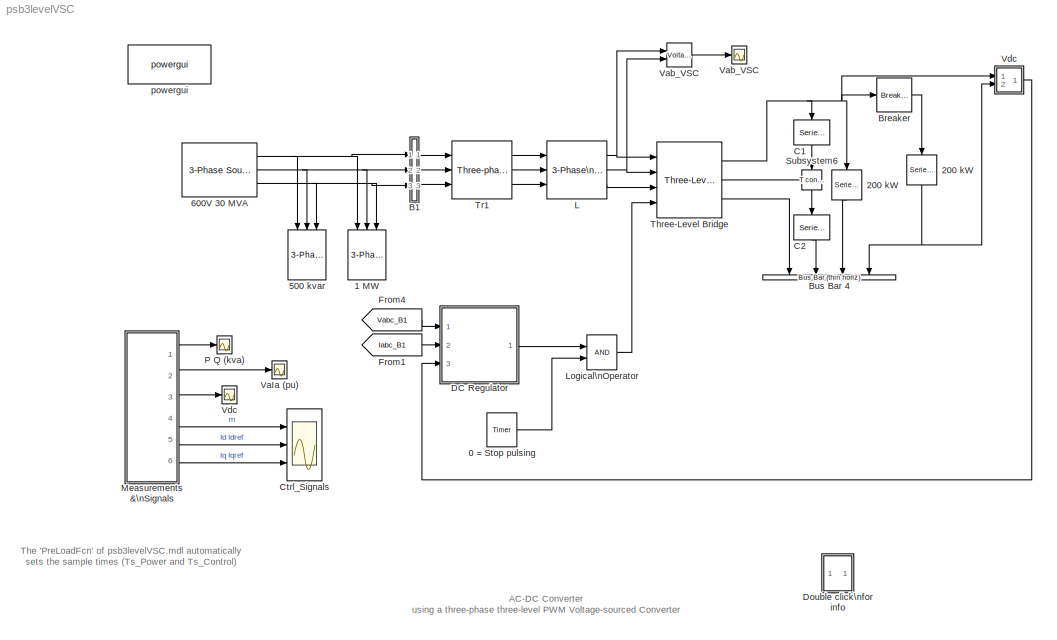
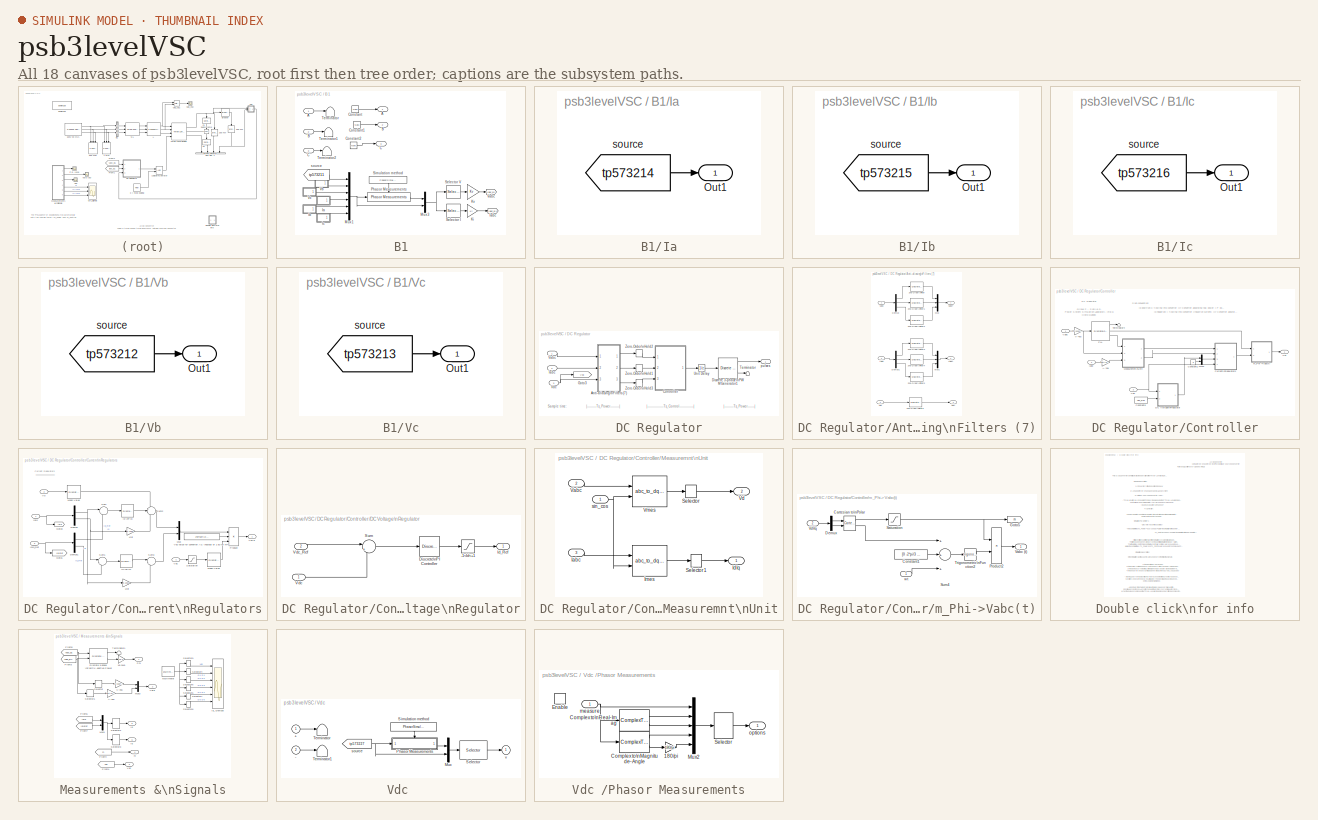
[diagram: thumbnail index - all 18 canvases of the model, root first then tree order]
MODEL psb3levelVSC
KIND model
CONFIG PreLoadFcn = assignin('base','Ts_Power',[5e-6]);assignin('base','Ts_Control',[100e-6])
BLOCK [Reference] 0 = Stop pulsing  REF=powerlib_extras/Control \nBlocks/Timer
  Ports = [0, 1]
  ShowPortLabels = on
  SourceBlock = powerlib_extras/Control \nBlocks/Timer
  SourceType = Timer
  e = [1 0]
  t = [0 0.2]
BLOCK [Reference] 1 MW  REF=powerlib2/Elements/3-Phase\nSeries RLC Load
  P3 = 1e6
  Ports = [3]
  QC3 = 0
  QL3 = 0
  ShowPortLabels = on
  SourceBlock = powerlib2/Elements/3-Phase\nSeries RLC Load
  SourceType = 3-phase series RLC load
  Vpp = 600
  fn = 60
BLOCK [Reference] 200 kW  REF=powerlib2/Elements/Series RLC Branch
  PSBOutputType = 1
  Ports = [1, 1]
  ShowPortLabels = on
  SourceBlock = powerlib2/Elements/Series RLC Branch
  SourceType = Series RLC Branch
  Tag = PoWeRsYsTeMbLoCk
  a = 500^2/200e3
  b = 0
  c = inf
  mesure = None
BLOCK [Reference] 200 kW   REF=powerlib2/Elements/Series RLC Branch
  PSBOutputType = 1
  Ports = [1, 1]
  ShowPortLabels = on
  SourceBlock = powerlib2/Elements/Series RLC Branch
  SourceType = Series RLC Branch
  Tag = PoWeRsYsTeMbLoCk
  a = 500^2/200e3
  b = 0
  c = inf
  mesure = None
BLOCK [Reference] 500 kvar  REF=powerlib2/Elements/3-Phase\nSeries RLC Load
  P3 = 0.5e6/100
  Ports = [3]
  QC3 = 0.5e6
  QL3 = 0
  ShowPortLabels = on
  SourceBlock = powerlib2/Elements/3-Phase\nSeries RLC Load
  SourceType = 3-phase series RLC load
  Vpp = 600
  fn = 60
BLOCK [Reference] 600V 30 MVA  REF=powerlib2/Electrical\nSources/3-Phase Source
  F = 60
  InternalConnection = Yg
  L = 19.2e-3
  PSBOutputType = 111
  Phi = 0
  Ports = [0, 3]
  Psc = 30e6
  R = 0.724
  RLoff = on
  ShowPortLabels = on
  SourceBlock = powerlib2/Electrical\nSources/3-Phase Source
  SourceType = 3-Phase Source
  Tag = PoWeRsYsTeMbLoCk
  V = 600
  Vbase = 600
  XRratio = 10
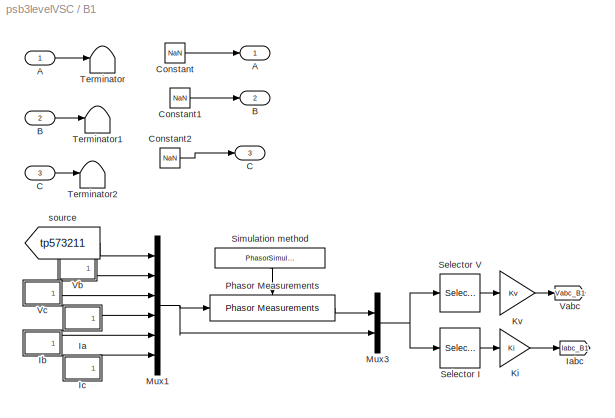
BLOCK [SubSystem] B1
  AncestorBlock = powerlib2/Measurements/Three-Phase\nV-I Measurement
  CloseFcn = %3phaseVImeasurement
  CopyFcn = powericon('psbloadfunction',gcbh,'3-Phase VI Measurement','VerifyPhasor');
  InitFcn = powericon('checksum',bdroot)
  LoadFcn = powericon('psbloadfunction',gcbh,'3-Phase VI Measurement','');
  MaskCallbackString = powericon('psbcallbacks',gcb,'Three-phase measurements',2);|powericon('psbcallbacks',gcb,'Three-phase measurements',2);||powericon('psbcallbacks',gcb,'Three-phase measurements',2);||powericon('psbcallbacks',gcb,'Three-phase measurements',2);|powericon('psbcallbacks',gcb,'Three-phase measurements',2);||powericon('psbcallbacks',gcb,'Three-phase measurements',4);|||||
  MaskDescription = This block is used to measure three-phase voltages and currents in a circuit. When connected in series with a three-phase element, it return the three phase-to-ground voltages and line currents.\n\nThe block can output the voltages and currents in per unit values or in volts and amperes. Check the appropriate boxes if you want to output the voltages and currents  in pu
  MaskEnableString = on,on,on,on,on,on,on,on,on,on,off,on,off,on
  MaskHelp = web(psbhelp)
  MaskIconFrame = on
  MaskIconOpaque = on
  MaskIconRotate = none
  MaskIconUnits = autoscale
  MaskInitialization = powericon('psbcallbacks',gcb,'Three-phase measurements',4);\nif  Vpu\n    xKv=1/(Vbase/sqrt(3)*sqrt(2));\nelse\n    xKv=1;\nend\nif  Ppu\n    xKi=1/(Pbase/Vbase/sqrt(3)*sqrt(2));\nelse\n    xKi=1;\nend\nswitch OutputType\ncase 1\n    OutputSelection  = [1:6];\n    PhasorModeV = [1:3];\n    NormalModeV = [7:9];\n    PhasorModeI = [4:6];\n    NormalModeI = [10:12];\n    Kv = xKv;\n    Ki = xKi;\ncas...<+826ch>
  MaskPromptString = Voltage measurement|Use a label |Signal label  (use a From block to collect signal)|Voltage  in pu|Base voltage (Vrms phase-phase) :|Current measurement|Use a label|Signal label  (use a From block to collect signal)|Currents in pu|Base power ( VA 3 phase)|Output signal :|Phasor simulation|Equivalent circuit|PSBOutputType
  MaskSelfModifiable = on
  MaskStyleString = popup(no|phase-to-ground|phase-to-phase),checkbox,edit,checkbox,edit,popup(no|yes),checkbox,edit,checkbox,edit,popup(Complex|Real-Imag|Magnitude-Angle|Magnitude),checkbox,edit,edit
  MaskTabNameString = ,,,,,,,,,,,,,
  MaskToolTipString = on,on,on,on,on,on,on,on,on,on,on,on,on,on
  MaskTunableValueString = off,off,off,on,on,off,off,off,on,on,on,on,on,on
  MaskType = 3-Phase VI Measurement
  MaskValueString = phase-to-ground|on|Vabc_B1|off|500e3|yes|on|Iabc_B1|off|100e6|Magnitude|off|0|11100
  MaskVarAliasString = ,,,,,,,,,,,,,
  MaskVariables = VChoice=@1;ualv=@2;labelV=&3;Vpu=@4;Vbase=@5;IChoice=@6;ualc=@7;labelC=&8;Ppu=@9;Pbase=@10;OutputType=@11;PhasorSimulation=@12;PSBequivalent=@13;PSBOutputType=&14;
  MaskVisibilityString = on,on,on,on,off,on,on,on,on,off,on,off,off,off
  MinAlgLoopOccurrences = off
  Ports = [3, 3]
  RTWSystemCode = Auto
  Tag = PoWeRsYsTeMmEaSuReMeNt
  TreatAsAtomicUnit = off
BLOCK [Inport] B1/A
  IconDisplay = Port number
  LatchInput = off
  Port = 1
BLOCK [Outport] B1/A 
  IconDisplay = Port number
BLOCK [Inport] B1/B
  IconDisplay = Port number
  LatchInput = off
  Port = 2
BLOCK [Outport] B1/B 
  IconDisplay = Port number
  Port = 2
BLOCK [Inport] B1/C
  IconDisplay = Port number
  LatchInput = off
  Port = 3
BLOCK [Outport] B1/C 
  IconDisplay = Port number
  Port = 3
BLOCK [Constant] B1/Constant
  Value = NaN
BLOCK [Constant] B1/Constant1
  Value = NaN
BLOCK [Constant] B1/Constant2
  Value = NaN
BLOCK [SubSystem] B1/Ia
  AncestorBlock = powerlib2/Measurements/Three-Phase\nV-I Measurement/Ia
  MinAlgLoopOccurrences = off
  Ports = [0, 1]
  RTWSystemCode = Auto
  TreatAsAtomicUnit = off
BLOCK [Outport] B1/Ia/Out1
  IconDisplay = Port number
BLOCK [From] B1/Ia/source
  DialogController = Simulink.DDGSource
  GotoTag = tp573214
BLOCK [Goto] B1/Iabc
  DialogController = Simulink.DDGSource
  GotoTag = Iabc_B1
  TagVisibility = global
BLOCK [SubSystem] B1/Ib
  AncestorBlock = powerlib2/Measurements/Three-Phase\nV-I Measurement/Ib
  MinAlgLoopOccurrences = off
  Ports = [0, 1]
  RTWSystemCode = Auto
  TreatAsAtomicUnit = off
BLOCK [Outport] B1/Ib/Out1
  IconDisplay = Port number
BLOCK [From] B1/Ib/source
  DialogController = Simulink.DDGSource
  GotoTag = tp573215
BLOCK [SubSystem] B1/Ic
  AncestorBlock = powerlib2/Measurements/Three-Phase\nV-I Measurement/Ic
  MinAlgLoopOccurrences = off
  Ports = [0, 1]
  RTWSystemCode = Auto
  TreatAsAtomicUnit = off
BLOCK [Outport] B1/Ic/Out1
  IconDisplay = Port number
BLOCK [From] B1/Ic/source
  DialogController = Simulink.DDGSource
  GotoTag = tp573216
BLOCK [Gain] B1/Ki
  Gain = Ki
BLOCK [Gain] B1/Kv
  Gain = Kv
BLOCK [Mux] B1/Mux1
  DisplayOption = bar
  Inputs = 6
  Ports = [6, 1]
BLOCK [Mux] B1/Mux3
  DisplayOption = bar
  Inputs = 2
  Ports = [2, 1]
BLOCK [Reference] B1/Phasor Measurements  REF=powerlib2/Measurements/Three-Phase\nV-I Measurement/Phasor Measurements
  DataTypeOverride = UseLocalSettings
  MinMaxOverflowLogging = UseLocalSettings
  Permissions = ReadWrite
  Ports = [1, 1, 1]
  RTWFcnNameOpts = Auto
  RTWFileNameOpts = Auto
  RTWSystemCode = Auto
  ShowPortLabels = on
  SimViewingDevice = off
  SourceBlock = powerlib2/Measurements/Three-Phase\nV-I Measurement/Phasor Measurements
  SourceType = SubSystem
  TreatAsAtomicUnit = on
BLOCK [Selector] B1/Selector I
  Elements = SelectionModeI
  InputPortWidth = length(OutputSelection)+6
  Ports = [1, 1]
BLOCK [Selector] B1/Selector V
  Elements = SelectionModeV
  InputPortWidth = length(OutputSelection)+6
  Ports = [1, 1]
BLOCK [Constant] B1/Simulation method
  Value = PhasorSimulation
BLOCK [Terminator] B1/Terminator
BLOCK [Terminator] B1/Terminator1
BLOCK [Terminator] B1/Terminator2
BLOCK [Goto] B1/Vabc
  DialogController = Simulink.DDGSource
  GotoTag = Vabc_B1
  TagVisibility = global
BLOCK [SubSystem] B1/Vb
  AncestorBlock = powerlib2/Measurements/Three-Phase\nV-I Measurement/Vb
  MinAlgLoopOccurrences = off
  Ports = [0, 1]
  RTWSystemCode = Auto
  TreatAsAtomicUnit = off
BLOCK [Outport] B1/Vb/Out1
  IconDisplay = Port number
BLOCK [From] B1/Vb/source
  DialogController = Simulink.DDGSource
  GotoTag = tp573212
BLOCK [SubSystem] B1/Vc
  AncestorBlock = powerlib2/Measurements/Three-Phase\nV-I Measurement/Vc
  MinAlgLoopOccurrences = off
  Ports = [0, 1]
  RTWSystemCode = Auto
  TreatAsAtomicUnit = off
BLOCK [Outport] B1/Vc/Out1
  IconDisplay = Port number
BLOCK [From] B1/Vc/source
  DialogController = Simulink.DDGSource
  GotoTag = tp573213
BLOCK [From] B1/source
  DialogController = Simulink.DDGSource
  GotoTag = tp573211
BLOCK [Reference] Breaker  REF=powerlib2/Elements/Breaker
  PSBOutputType = 1
  Ports = [1, 1]
  ShowPortLabels = on
  SourceBlock = powerlib2/Elements/Breaker
  SourceType = Breaker
  Tag = PoWeRsYsTeMbLoCk
  Ts = 0
  a = 0.001
  c = 0
  comext = off
  cs = inf
  mesure = None
  rs = 1e6
  times = [0.15]
BLOCK [Reference] Bus Bar 4  REF=powerlib2/Connectors/Bus Bar (thin horiz)
  PSBOutputType = 111111111111111111111111111111111111111111111111111111111111111111111111111111111111
  Ports = [4]
  ShowPortLabels = on
  SourceBlock = powerlib2/Connectors/Bus Bar (thin horiz)
  SourceType = Bus Bar
  Tag = PoWeRsYsTeMbLoCk
  input = 4
  output = 0
BLOCK [Reference] C1  REF=powerlib2/Elements/Series RLC Branch
  PSBOutputType = 1
  Ports = [1, 1]
  ShowPortLabels = on
  SourceBlock = powerlib2/Elements/Series RLC Branch
  SourceType = Series RLC Branch
  Tag = PoWeRsYsTeMbLoCk
  a = 0
  b = 0
  c = 75000e-06
  mesure = None
BLOCK [Reference] C2  REF=powerlib2/Elements/Series RLC Branch
  PSBOutputType = 1
  Ports = [1, 1]
  ShowPortLabels = on
  SourceBlock = powerlib2/Elements/Series RLC Branch
  SourceType = Series RLC Branch
  Tag = PoWeRsYsTeMbLoCk
  a = 0
  b = 0
  c = 75000e-06
  mesure = None
BLOCK [Scope] Ctrl_Signals
  DataFormat = Array
  LimitDataPoints = off
  NumInputPorts = 3
  Ports = [3]
  SampleInput = on
  SampleTime = Ts_Control
  SaveName = V_Load
  YMax = 1.2~1~1
  YMin = 0.6~-1~-1
  ZoomMode = yonly
BLOCK [SubSystem] DC Regulator
  MaskEnableString = on
  MaskIconFrame = on
  MaskIconOpaque = on
  MaskIconRotate = none
  MaskIconUnits = autoscale
  MaskPromptString = DC voltage setpoint (V):
  MaskStyleString = edit
  MaskToolTipString = on
  MaskTunableValueString = on
  MaskType = DC Voltage Regulator
  MaskValueString = 500
  MaskVariables = Vdc_Ref=@1;
  MaskVisibilityString = on
  MinAlgLoopOccurrences = off
  Ports = [3, 1]
  RTWSystemCode = Auto
  TreatAsAtomicUnit = off
BLOCK [SubSystem] DC Regulator/Anti-aliasing\nFilters (7)
  MaskCallbackString = |
  MaskEnableString = on,on
  MaskIconFrame = on
  MaskIconOpaque = on
  MaskIconRotate = none
  MaskIconUnits = autoscale
  MaskPromptString = Cut-off frequency (Hz):|Sample time:
  MaskStyleString = edit,edit
  MaskTabNameString = ,
  MaskToolTipString = on,on
  MaskTunableValueString = on,on
  MaskType = Anti-aliasing (2nd order lowpass)
  MaskValueString = 750|Ts_Power
  MaskVarAliasString = ,
  MaskVariables = Fc=@1;Ts=@2;
  MaskVisibilityString = on,on
  MinAlgLoopOccurrences = off
  Ports = [3, 3]
  RTWSystemCode = Auto
  TreatAsAtomicUnit = off
BLOCK [Outport] DC Regulator/Anti-aliasing\nFilters (7)/ Vabc*
  IconDisplay = Port number
BLOCK [Outport] DC Regulator/Anti-aliasing\nFilters (7)/ Vdc*
  IconDisplay = Port number
  Port = 3
BLOCK [Reference] DC Regulator/Anti-aliasing\nFilters (7)/2nd-Order\nFilter  REF=powerlib_extras/Discrete \nControl Blocks/Discrete \n2nd-Order\nFilter
  FilterType = Lowpass
  Fo = Fc
  Initialize = off
  PlotResponse = off
  Ports = [1, 1]
  SourceBlock = powerlib_extras/Discrete \nControl Blocks/Discrete \n2nd-Order\nFilter
  SourceType = Discrete 2nd-Order Filter
  Ts = Ts
  Vac_Init = [0.8 -25 60]
  Vdc_Init = -0.4
  Zeta = 0.707
  param1 = [1 2000 0.2]
BLOCK [Reference] DC Regulator/Anti-aliasing\nFilters (7)/2nd-Order\nFilter1  REF=powerlib_extras/Discrete \nControl Blocks/Discrete \n2nd-Order\nFilter
  FilterType = Lowpass
  Fo = Fc
  Initialize = off
  PlotResponse = off
  Ports = [1, 1]
  SourceBlock = powerlib_extras/Discrete \nControl Blocks/Discrete \n2nd-Order\nFilter
  SourceType = Discrete 2nd-Order Filter
  Ts = Ts
  Vac_Init = [0.8 -25 60]
  Vdc_Init = -0.4
  Zeta = 0.707
  param1 = [1 5000 0.1]
BLOCK [Reference] DC Regulator/Anti-aliasing\nFilters (7)/2nd-Order\nFilter2  REF=powerlib_extras/Discrete \nControl Blocks/Discrete \n2nd-Order\nFilter
  FilterType = Lowpass
  Fo = Fc
  Initialize = off
  PlotResponse = off
  Ports = [1, 1]
  SourceBlock = powerlib_extras/Discrete \nControl Blocks/Discrete \n2nd-Order\nFilter
  SourceType = Discrete 2nd-Order Filter
  Ts = Ts
  Vac_Init = [0.8 -25 60]
  Vdc_Init = -0.4
  Zeta = 0.707
  param1 = [1 5000 0.1]
BLOCK [Reference] DC Regulator/Anti-aliasing\nFilters (7)/2nd-Order\nFilter3  REF=powerlib_extras/Discrete \nControl Blocks/Discrete \n2nd-Order\nFilter
  FilterType = Lowpass
  Fo = Fc
  Initialize = off
  PlotResponse = off
  Ports = [1, 1]
  SourceBlock = powerlib_extras/Discrete \nControl Blocks/Discrete \n2nd-Order\nFilter
  SourceType = Discrete 2nd-Order Filter
  Ts = Ts
  Vac_Init = [0.8 -25 60]
  Vdc_Init = -0.4
  Zeta = 0.707
  param1 = [1 2000 0.2]
BLOCK [Reference] DC Regulator/Anti-aliasing\nFilters (7)/2nd-Order\nFilter4  REF=powerlib_extras/Discrete \nControl Blocks/Discrete \n2nd-Order\nFilter
  FilterType = Lowpass
  Fo = Fc
  Initialize = off
  PlotResponse = off
  Ports = [1, 1]
  SourceBlock = powerlib_extras/Discrete \nControl Blocks/Discrete \n2nd-Order\nFilter
  SourceType = Discrete 2nd-Order Filter
  Ts = Ts
  Vac_Init = [0.8 -25 60]
  Vdc_Init = -0.4
  Zeta = 0.707
  param1 = [1 5000 0.1]
BLOCK [Reference] DC Regulator/Anti-aliasing\nFilters (7)/2nd-Order\nFilter5  REF=powerlib_extras/Discrete \nControl Blocks/Discrete \n2nd-Order\nFilter
  FilterType = Lowpass
  Fo = Fc
  Initialize = off
  PlotResponse = off
  Ports = [1, 1]
  SourceBlock = powerlib_extras/Discrete \nControl Blocks/Discrete \n2nd-Order\nFilter
  SourceType = Discrete 2nd-Order Filter
  Ts = Ts
  Vac_Init = [0.8 -25 60]
  Vdc_Init = -0.4
  Zeta = 0.707
  param1 = [1 5000 0.1]
BLOCK [Reference] DC Regulator/Anti-aliasing\nFilters (7)/2nd-Order\nFilter6  REF=powerlib_extras/Discrete \nControl Blocks/Discrete \n2nd-Order\nFilter
  FilterType = Lowpass
  Fo = Fc
  Initialize = off
  PlotResponse = off
  Ports = [1, 1]
  SourceBlock = powerlib_extras/Discrete \nControl Blocks/Discrete \n2nd-Order\nFilter
  SourceType = Discrete 2nd-Order Filter
  Ts = Ts
  Vac_Init = [0.8 -25 60]
  Vdc_Init = -0.4
  Zeta = 0.707
  param1 = [1 5000 0.1]
BLOCK [Demux] DC Regulator/Anti-aliasing\nFilters (7)/Demux
  Outputs = 3
  Ports = [1, 3]
BLOCK [Demux] DC Regulator/Anti-aliasing\nFilters (7)/Demux1
  Outputs = 3
  Ports = [1, 3]
BLOCK [Inport] DC Regulator/Anti-aliasing\nFilters (7)/Iabc 
  IconDisplay = Port number
  LatchInput = off
  Port = 2
  PortDimensions = 3
BLOCK [Outport] DC Regulator/Anti-aliasing\nFilters (7)/Iabc*
  IconDisplay = Port number
  Port = 2
BLOCK [Mux] DC Regulator/Anti-aliasing\nFilters (7)/Mux
  DisplayOption = bar
  Inputs = 3
  Ports = [3, 1]
BLOCK [Mux] DC Regulator/Anti-aliasing\nFilters (7)/Mux1
  DisplayOption = bar
  Inputs = 3
  Ports = [3, 1]
BLOCK [Inport] DC Regulator/Anti-aliasing\nFilters (7)/Vabc
  IconDisplay = Port number
  LatchInput = off
  Port = 1
  PortDimensions = 3
BLOCK [Inport] DC Regulator/Anti-aliasing\nFilters (7)/Vdc 
  IconDisplay = Port number
  LatchInput = off
  Port = 3
  PortDimensions = 1
BLOCK [SubSystem] DC Regulator/Controller
  MaskCallbackString = ||||
  MaskEnableString = on,on,on,on,on
  MaskIconFrame = on
  MaskIconOpaque = on
  MaskIconRotate = none
  MaskIconUnits = autoscale
  MaskInitialization = Vnom=Par_Nom(1);\nPnom=Par_Nom(2);\nKp_I=Par_IReg(1);\nKi_I=Par_IReg(2);\nKp_Vdc=Par_VdcReg(1);\nKi_Vdc=Par_VdcReg(2);\n
  MaskPromptString = DC Voltage setpoint (Volts)|Vdc Regulator Gains: [ Kp  Ki ]|Current Regulators Gain: [ Kp Ki Kd ]|Nominal Voltage and power: [ Vnom (volts rms L-L)  Pnom (VA) ]|Time Step (s)
  MaskStyleString = edit,edit,edit,edit,edit
  MaskTabNameString = ,,,,
  MaskToolTipString = on,on,on,on,on
  MaskTunableValueString = on,on,on,on,on
  MaskType = DC Regulator
  MaskValueString = Vdc_Ref|[0.015 1.6]|[0.3 20]|[600 500e3]|Ts_Control
  MaskVarAliasString = ,,,,
  MaskVariables = Vdc_Ref=@1;Par_VdcReg=@2;Par_IReg=@3;Par_Nom=@4;Ts=@5;
  MaskVisibilityString = on,on,on,on,on
  MinAlgLoopOccurrences = off
  Ports = [3, 1]
  RTWSystemCode = Auto
  TreatAsAtomicUnit = off
BLOCK [Gain] DC Regulator/Controller/A->pu
  Gain = sqrt(3)*Vnom/sqrt(2)/Pnom
BLOCK [Constant] DC Regulator/Controller/Constant1
  Value = 0
BLOCK [Constant] DC Regulator/Controller/Constant6
  Value = Vdc_Ref
BLOCK [SubSystem] DC Regulator/Controller/Current\nRegulators
  MaskCallbackString = ||||||
  MaskDescription = Sign convention:\nId positive(+) flowing into converter ==> Converter absorbing real power = P positive(+) \nIq negative(-) flowing into converter (inductive current) ==> Converter absorbing reactive power = Q positive(+)
  MaskEnableString = on,on,on,on,on,on,on
  MaskIconFrame = on
  MaskIconOpaque = on
  MaskIconRotate = none
  MaskIconUnits = autoscale
  MaskPromptString = Proportional gain (Kp):|Integral gain (Ki):|Derivative gain (Kd):|Time constant for derivative (s):|Output limits: [ Upper   Lower ]|Output initial value:|Sample time:
  MaskStyleString = edit,edit,edit,edit,edit,edit,edit
  MaskTabNameString = ,,,,,,
  MaskToolTipString = on,on,on,on,on,on,on
  MaskTunableValueString = on,on,on,on,on,on,on
  MaskType = Current Regulators
  MaskValueString = Kp_I|Ki_I|0|0.2e-3|[12 -12]|0|Ts
  MaskVarAliasString = ,,,,,,
  MaskVariables = Kp=@1;Ki=@2;Kd=@3;TcD=@4;Par_Limits=@5;Init=@6;Ts=@7;
  MaskVisibilityString = on,on,on,on,on,on,on
  MinAlgLoopOccurrences = off
  Ports = [4, 1]
  RTWSystemCode = Auto
  TreatAsAtomicUnit = off
BLOCK [Gain] DC Regulator/Controller/Current\nRegulators/ Ltot
  Gain = 0.1055
BLOCK [Demux] DC Regulator/Controller/Current\nRegulators/Demux
  Outputs = 2
  Ports = [1, 2]
BLOCK [Demux] DC Regulator/Controller/Current\nRegulators/Demux1
  Outputs = 2
  Ports = [1, 2]
BLOCK [Goto] DC Regulator/Controller/Current\nRegulators/Goto1
  DialogController = Simulink.DDGSource
  GotoTag = IdIqref
  TagVisibility = global
BLOCK [Goto] DC Regulator/Controller/Current\nRegulators/Goto3
  DialogController = Simulink.DDGSource
  GotoTag = IdIq
  TagVisibility = global
BLOCK [Reference] DC Regulator/Controller/Current\nRegulators/Id \nPID  REF=powerlib_extras/Discrete \nControl Blocks/Discrete\nPID Controller
  Init = Init
  Kd = Kd
  Ki = Ki
  Kp = Kp
  Par_Limits = Par_Limits
  Ports = [1, 1]
  SourceBlock = powerlib_extras/Discrete \nControl Blocks/Discrete\nPID Controller
  SourceType = Discrete PID Controller
  TcD = TcD
  Ts = Ts
BLOCK [Inport] DC Regulator/Controller/Current\nRegulators/IdIq
  IconDisplay = Port number
  LatchInput = off
  Port = 1
  PortDimensions = 2
BLOCK [Inport] DC Regulator/Controller/Current\nRegulators/IdIq_Ref
  IconDisplay = Port number
  LatchInput = off
  Port = 3
  PortDimensions = 2
BLOCK [Reference] DC Regulator/Controller/Current\nRegulators/Iq \nPID  REF=powerlib_extras/Discrete \nControl Blocks/Discrete\nPID Controller
  Init = Init
  Kd = Kd
  Ki = Ki
  Kp = Kp
  Par_Limits = Par_Limits
  Ports = [1, 1]
  SourceBlock = powerlib_extras/Discrete \nControl Blocks/Discrete\nPID Controller
  SourceType = Discrete PID Controller
  TcD = TcD
  Ts = Ts
BLOCK [Gain] DC Regulator/Controller/Current\nRegulators/Ltot 
  Gain = 0.1055
BLOCK [Reference] DC Regulator/Controller/Current\nRegulators/Mean Value  REF=powerlib_extras/Discrete\nMeasurements/Discrete \nMean value
  AncestorBlock = powerlib_extras/Discrete\nMeasurements/Discrete \nMean value
  Freq = 60
  Ports = [1, 1]
  SourceBlock = powerlib_extras/Discrete\nMeasurements/Discrete \nMean value
  SourceType = Discrete Mean value
  Ts = Ts
  Vinit = 1.007
BLOCK [Mux] DC Regulator/Controller/Current\nRegulators/Mux
  DisplayOption = bar
  Inputs = 2
  Ports = [2, 1]
BLOCK [Product] DC Regulator/Controller/Current\nRegulators/Product
  Inputs = **/
  Ports = [3, 1]
  RndMeth = Floor
BLOCK [Saturate] DC Regulator/Controller/Current\nRegulators/Saturation
  LowerLimit = 10
  UpperLimit = 10000
BLOCK [Sum] DC Regulator/Controller/Current\nRegulators/Sum
  IconShape = round
  Inputs = |-+
  Ports = [2, 1]
BLOCK [Sum] DC Regulator/Controller/Current\nRegulators/Sum1
  IconShape = round
  Inputs = |-+
  Ports = [2, 1]
BLOCK [Sum] DC Regulator/Controller/Current\nRegulators/Sum2
  IconShape = round
  Inputs = +|-|+
  Ports = [3, 1]
BLOCK [Sum] DC Regulator/Controller/Current\nRegulators/Sum3
  IconShape = round
  Inputs = |--
  Ports = [2, 1]
BLOCK [Inport] DC Regulator/Controller/Current\nRegulators/Vd
  IconDisplay = Port number
  LatchInput = off
  Port = 2
BLOCK [Outport] DC Regulator/Controller/Current\nRegulators/VdVq
  IconDisplay = Port number
BLOCK [Inport] DC Regulator/Controller/Current\nRegulators/Vdc
  IconDisplay = Port number
  LatchInput = off
  Port = 4
BLOCK [Constant] DC Regulator/Controller/Current\nRegulators/Vdc value for converter AC \noutput of 1 pu for m=1
  Value = 240*sqrt(2)/(sqrt(3)/2)
BLOCK [Reference] DC Regulator/Controller/Current\nRegulators/mean Value   REF=powerlib_extras/Discrete\nMeasurements/Discrete \nMean value
  AncestorBlock = powerlib_extras/Discrete\nMeasurements/Discrete \nMean value
  Freq = 60
  Ports = [1, 1]
  SourceBlock = powerlib_extras/Discrete\nMeasurements/Discrete \nMean value
  SourceType = Discrete Mean value
  Ts = Ts
  Vinit = 500
BLOCK [SubSystem] DC Regulator/Controller/DC Voltage\nRegulator
  MaskCallbackString = ||
  MaskEnableString = on,on,on
  MaskIconFrame = on
  MaskIconOpaque = on
  MaskIconRotate = none
  MaskIconUnits = autoscale
  MaskPromptString = Proportional gain (Kp):|Integral gain(Ki)|Sample time:
  MaskStyleString = edit,edit,edit
  MaskTabNameString = ,,
  MaskToolTipString = on,on,on
  MaskTunableValueString = on,on,on
  MaskType = DC Voltage regulator
  MaskValueString = Kp_Vdc|Ki_Vdc|Ts
  MaskVarAliasString = ,,
  MaskVariables = Kp=@1;Ki=@2;Ts=@3;
  MaskVisibilityString = on,on,on
  MinAlgLoopOccurrences = off
  Ports = [2, 1]
  RTWSystemCode = Auto
  TreatAsAtomicUnit = off
BLOCK [Saturate] DC Regulator/Controller/DC Voltage\nRegulator/-1<Id<+1
  LowerLimit = -1.2
  UpperLimit = 1.2
BLOCK [Reference] DC Regulator/Controller/DC Voltage\nRegulator/Discrete\nPI Controller  REF=powerlib_extras/Discrete \nControl Blocks/Discrete\nPI Controller
  Init = 0
  Ki = Ki
  Kp = Kp
  Par_Limits = [1.2 -1.2]
  Ports = [1, 1]
  SourceBlock = powerlib_extras/Discrete \nControl Blocks/Discrete\nPI Controller
  SourceType = Discrete PI Controller
  Ts = Ts
BLOCK [Outport] DC Regulator/Controller/DC Voltage\nRegulator/Id_Ref
  IconDisplay = Port number
  InitialOutput = 0
BLOCK [Sum] DC Regulator/Controller/DC Voltage\nRegulator/Sum
  IconShape = round
  Inputs = |+-
  Ports = [2, 1]
BLOCK [Inport] DC Regulator/Controller/DC Voltage\nRegulator/Vdc
  IconDisplay = Port number
  LatchInput = off
  Port = 1
BLOCK [Inport] DC Regulator/Controller/DC Voltage\nRegulator/Vdc_Ref
  IconDisplay = Port number
  LatchInput = off
  Port = 2
BLOCK [Inport] DC Regulator/Controller/Iabc
  IconDisplay = Port number
  LatchInput = off
  Port = 2
  PortDimensions = 3
BLOCK [SubSystem] DC Regulator/Controller/Measuremnt\nUnit
  MinAlgLoopOccurrences = off
  Ports = [3, 2]
  RTWSystemCode = Auto
  TreatAsAtomicUnit = off
BLOCK [Inport] DC Regulator/Controller/Measuremnt\nUnit/Iabc
  IconDisplay = Port number
  LatchInput = off
  Port = 3
BLOCK [Outport] DC Regulator/Controller/Measuremnt\nUnit/IdIq
  IconDisplay = Port number
BLOCK [Reference] DC Regulator/Controller/Measuremnt\nUnit/Imes  REF=powerlib_extras/Measurements/abc_to_dq0\nTransformation
  Ports = [2, 1]
  SourceBlock = powerlib_extras/Measurements/abc_to_dq0\nTransformation
  SourceType = abc to dq0 Transformation
BLOCK [Selector] DC Regulator/Controller/Measuremnt\nUnit/Selector
  InputPortWidth = 3
  Ports = [1, 1]
BLOCK [Selector] DC Regulator/Controller/Measuremnt\nUnit/Selector1
  Elements = [1 2]
  InputPortWidth = 3
  Ports = [1, 1]
BLOCK [Inport] DC Regulator/Controller/Measuremnt\nUnit/Vabc
  IconDisplay = Port number
  LatchInput = off
  Port = 2
BLOCK [Outport] DC Regulator/Controller/Measuremnt\nUnit/Vd
  IconDisplay = Port number
  Port = 2
BLOCK [Reference] DC Regulator/Controller/Measuremnt\nUnit/Vmes  REF=powerlib_extras/Measurements/abc_to_dq0\nTransformation
  Ports = [2, 1]
  SourceBlock = powerlib_extras/Measurements/abc_to_dq0\nTransformation
  SourceType = abc to dq0 Transformation
BLOCK [Inport] DC Regulator/Controller/Measuremnt\nUnit/sin_cos
  IconDisplay = Port number
  LatchInput = off
  Port = 1
BLOCK [Mux] DC Regulator/Controller/Mux3
  DisplayOption = bar
  Inputs = 2
  Ports = [2, 1]
BLOCK [Reference] DC Regulator/Controller/PLL  REF=powerlib_extras/Discrete \nControl Blocks/Discrete\n3-phase PLL
  Fmin = 45
  ParK = [60 1400]
  Par_Init = [-45 60]
  Ports = [1, 3]
  SourceBlock = powerlib_extras/Discrete \nControl Blocks/Discrete\n3-phase PLL
  SourceType = Discrete 3-phase PLL
  Ts = Ts
BLOCK [Terminator] DC Regulator/Controller/Terminator4
BLOCK [Outport] DC Regulator/Controller/Ust
  IconDisplay = Port number
BLOCK [Gain] DC Regulator/Controller/V->pu
  Gain = 1/(Vnom*sqrt(2)/sqrt(3))
BLOCK [Inport] DC Regulator/Controller/Vabc
  IconDisplay = Port number
  LatchInput = off
  Port = 1
  PortDimensions = 3
BLOCK [Inport] DC Regulator/Controller/Vdc
  IconDisplay = Port number
  LatchInput = off
  Port = 3
  PortDimensions = 1
BLOCK [SubSystem] DC Regulator/Controller/m_Phi->Vabc(t)
  MinAlgLoopOccurrences = off
  Ports = [2, 1]
  RTWSystemCode = Auto
  TreatAsAtomicUnit = off
BLOCK [Reference] DC Regulator/Controller/m_Phi->Vabc(t)/Cartesian to\nPolar  REF=simulink_extras/Transformations/Cartesian to\nPolar
  Ports = [2, 2]
  SourceBlock = simulink_extras/Transformations/Cartesian to\nPolar
  SourceType = Cart2Polar
BLOCK [Constant] DC Regulator/Controller/m_Phi->Vabc(t)/Constant1
  Value = [0 -2*pi/3 2*pi/3]
BLOCK [Demux] DC Regulator/Controller/m_Phi->Vabc(t)/Demux
  Outputs = 2
  Ports = [1, 2]
BLOCK [Goto] DC Regulator/Controller/m_Phi->Vabc(t)/Goto5
  DialogController = Simulink.DDGSource
  GotoTag = m
  TagVisibility = global
BLOCK [Product] DC Regulator/Controller/m_Phi->Vabc(t)/Product2
  Ports = [2, 1]
  RndMeth = Floor
BLOCK [Saturate] DC Regulator/Controller/m_Phi->Vabc(t)/Saturation
  LowerLimit = 0
  UpperLimit = 1
BLOCK [Sum] DC Regulator/Controller/m_Phi->Vabc(t)/Sum4
  Inputs = +++
  Ports = [3, 1]
BLOCK [Trigonometry] DC Regulator/Controller/m_Phi->Vabc(t)/Trigonometric\nFunction2
  Ports = [1, 1]
BLOCK [Outport] DC Regulator/Controller/m_Phi->Vabc(t)/Vabc (t)
  IconDisplay = Port number
BLOCK [Inport] DC Regulator/Controller/m_Phi->Vabc(t)/VdVq
  IconDisplay = Port number
  LatchInput = off
  Port = 2
BLOCK [Inport] DC Regulator/Controller/m_Phi->Vabc(t)/wt
  IconDisplay = Port number
  LatchInput = off
  Port = 1
BLOCK [Reference] DC Regulator/Discrete 3-phase\nPWM Generator1  REF=powerlib_extras/Discrete \nControl Blocks/Discrete 3-phase\nPWM Generator
  Fc = 27*60
  Freq = 60
  ModulatingSignals = off
  ModulatorMode = Un-synchronized
  ModulatorType = 3-level
  Phase = 0
  Ports = [1, 2]
  SourceBlock = powerlib_extras/Discrete \nControl Blocks/Discrete 3-phase\nPWM Generator
  SourceType = Discrete 3-phase PWM Generator (2- or 3-level)
  Ts = Ts_Power
  m = 0.2
  nF = 18
BLOCK [Goto] DC Regulator/Goto3
  DialogController = Simulink.DDGSource
  GotoTag = Vdc
  TagVisibility = global
BLOCK [Inport] DC Regulator/Iabc
  IconDisplay = Port number
  LatchInput = off
  Port = 2
  PortDimensions = 3
BLOCK [Terminator] DC Regulator/Terminator
BLOCK [UnitDelay] DC Regulator/Unit Delay
  SampleTime = Ts_Control
BLOCK [Inport] DC Regulator/Vabc
  IconDisplay = Port number
  LatchInput = off
  Port = 1
  PortDimensions = 3
BLOCK [Inport] DC Regulator/Vdc
  IconDisplay = Port number
  LatchInput = off
  Port = 3
  PortDimensions = 1
BLOCK [ZeroOrderHold] DC Regulator/Zero-Order\nHold1
  SampleTime = Ts_Control
BLOCK [ZeroOrderHold] DC Regulator/Zero-Order\nHold2
  SampleTime = Ts_Control
BLOCK [ZeroOrderHold] DC Regulator/Zero-Order\nHold3
  SampleTime = Ts_Control
BLOCK [Outport] DC Regulator/pulses
  IconDisplay = Port number
BLOCK [SubSystem] Double click\nfor info
  MaskDisplay = disp('?')
  MaskIconFrame = on
  MaskIconOpaque = on
  MaskIconRotate = none
  MaskIconUnits = autoscale
  MaskType = Information
  MinAlgLoopOccurrences = off
  Ports = []
  RTWSystemCode = Auto
  TreatAsAtomicUnit = off
BLOCK [From] From1
  CloseFcn = tagdialog Close
  DialogController = Simulink.DDGSource
  GotoTag = Iabc_B1
BLOCK [From] From4
  CloseFcn = tagdialog Close
  DialogController = Simulink.DDGSource
  GotoTag = Vabc_B1
BLOCK [Reference] L  REF=powerlib2/Elements/3-Phase\nSeries RLC Branch 
  C = inf
  L = 20e-6
  Ports = [3, 3]
  R = 0.1e-3
  ShowPortLabels = on
  SourceBlock = powerlib2/Elements/3-Phase\nSeries RLC Branch
  SourceType = 3-phase RLC series element
BLOCK [Logic] Logical\nOperator
  AllPortsSameDT = off
  LogicDataType = float('double')
  OutDataTypeMode = Specify via dialog
  Ports = [2, 1]
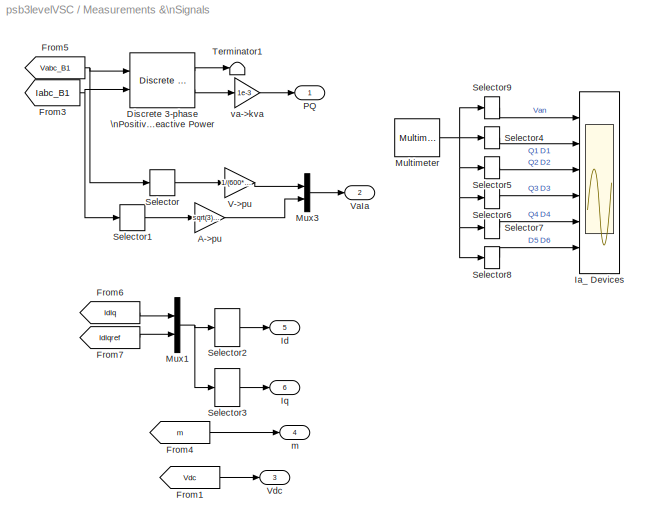
BLOCK [SubSystem] Measurements &\nSignals
  MinAlgLoopOccurrences = off
  Ports = [0, 6]
  RTWSystemCode = Auto
  TreatAsAtomicUnit = off
BLOCK [Gain] Measurements &\nSignals/A->pu
  Gain = sqrt(3)*600/sqrt(2)/500e3
BLOCK [Reference] Measurements &\nSignals/Discrete 3-phase \nPositive-Sequence \nActive & Reactive Power  REF=powerlib_extras/Discrete\nMeasurements/Discrete 3-phase \nPositive-Sequence \nActive & Reactive Power
  Freq = 60
  Par_Iinit = [5 0]
  Par_Vinit = [370 0]
  Ports = [2, 2]
  ShowPortLabels = on
  SourceBlock = powerlib_extras/Discrete\nMeasurements/Discrete 3-phase \nPositive-Sequence \nActive & Reactive Power
  SourceType = Discrete 3-phase Positive-Sequence Active & Reactive Power
  Ts = Ts_Power
BLOCK [From] Measurements &\nSignals/From1
  CloseFcn = tagdialog Close
  DialogController = Simulink.DDGSource
  GotoTag = Vdc
BLOCK [From] Measurements &\nSignals/From3
  CloseFcn = tagdialog Close
  DialogController = Simulink.DDGSource
  GotoTag = Iabc_B1
BLOCK [From] Measurements &\nSignals/From4
  CloseFcn = tagdialog Close
  DialogController = Simulink.DDGSource
  GotoTag = m
BLOCK [From] Measurements &\nSignals/From5
  CloseFcn = tagdialog Close
  DialogController = Simulink.DDGSource
  GotoTag = Vabc_B1
BLOCK [From] Measurements &\nSignals/From6
  CloseFcn = tagdialog Close
  DialogController = Simulink.DDGSource
  GotoTag = IdIq
BLOCK [From] Measurements &\nSignals/From7
  CloseFcn = tagdialog Close
  DialogController = Simulink.DDGSource
  GotoTag = IdIqref
BLOCK [Scope] Measurements &\nSignals/Ia_ Devices
  DataFormat = Array
  LimitDataPoints = off
  NumInputPorts = 6
  Ports = [6]
  SampleInput = on
  SampleTime = Ts_Power*2
  SaveName = I_Q3_disc1
  TimeRange = 0.033
  YMax = 300~7500~7500~4000~4000~7500
  YMin = -400~-0~-0~0~0~0
  ZoomMode = xonly
BLOCK [Outport] Measurements &\nSignals/Id
  IconDisplay = Port number
  Port = 5
BLOCK [Outport] Measurements &\nSignals/Iq
  IconDisplay = Port number
  Port = 6
BLOCK [Reference] Measurements &\nSignals/Multimeter  REF=powerlib2/Measurements/Multimeter
  AxesSetting = [0,0.1,-100,100]
  Display = 0
  Gain = [1 1 1 1 1 1 1 1 1 1 1]
  L = 35
  OutputType = Magnitude
  PSBOutputType = 1
  PSBequivalent = 0
  PhasorSimulation = off
  Ports = [0, 1]
  SavedBlockNames = -11
  ShowPortLabels = on
  SourceBlock = powerlib2/Measurements/Multimeter
  SourceType = MultimeterPSB
  Tag = PoWeRsYsTeMmEaSuReMeNt
  sel = [1 6 7 8 9 10 11 12 13 14 15]
  yselected = {'Uan: Three-Level Bridge','IQ1a: Three-Level Bridge','IQ2a: Three-Level Bridge','IQ3a: Three-Level Bridge','IQ4a: Three-Level Bridge','ID1a: Three-Level Bridge','ID2a: Three-Level Bridge','ID3a: Three-Level Bridge','ID4a: Three-Level Bridge','ID5a: Three-Level Bridge','ID6a: Three-Level Bridge'};
BLOCK [Mux] Measurements &\nSignals/Mux1
  DisplayOption = bar
  Inputs = 2
  Ports = [2, 1]
BLOCK [Mux] Measurements &\nSignals/Mux3
  DisplayOption = bar
  Inputs = 2
  Ports = [2, 1]
BLOCK [Outport] Measurements &\nSignals/PQ
  IconDisplay = Port number
BLOCK [Selector] Measurements &\nSignals/Selector
  InputPortWidth = 3
  Ports = [1, 1]
BLOCK [Selector] Measurements &\nSignals/Selector1
  InputPortWidth = 3
  Ports = [1, 1]
BLOCK [Selector] Measurements &\nSignals/Selector2
  Elements = [1 3]
  InputPortWidth = 4
  Ports = [1, 1]
BLOCK [Selector] Measurements &\nSignals/Selector3
  Elements = [1 3]+1
  InputPortWidth = 4
  Ports = [1, 1]
BLOCK [Selector] Measurements &\nSignals/Selector4
  Elements = [1 5]+1
  InputPortWidth = 11
  Ports = [1, 1]
BLOCK [Selector] Measurements &\nSignals/Selector5
  Elements = [1 5]+2
  InputPortWidth = 11
  Ports = [1, 1]
BLOCK [Selector] Measurements &\nSignals/Selector6
  Elements = [1 5]+3
  InputPortWidth = 11
  Ports = [1, 1]
BLOCK [Selector] Measurements &\nSignals/Selector7
  Elements = [1 5]+4
  InputPortWidth = 11
  Ports = [1, 1]
BLOCK [Selector] Measurements &\nSignals/Selector8
  Elements = [10 11]
  InputPortWidth = 11
  Ports = [1, 1]
BLOCK [Selector] Measurements &\nSignals/Selector9
  InputPortWidth = 11
  Ports = [1, 1]
BLOCK [Terminator] Measurements &\nSignals/Terminator1
BLOCK [Gain] Measurements &\nSignals/V->pu
  Gain = 1/(600*sqrt(2)/sqrt(3))
BLOCK [Outport] Measurements &\nSignals/VaIa
  IconDisplay = Port number
  Port = 2
BLOCK [Outport] Measurements &\nSignals/Vdc
  IconDisplay = Port number
  Port = 3
BLOCK [Outport] Measurements &\nSignals/m
  IconDisplay = Port number
  Port = 4
BLOCK [Gain] Measurements &\nSignals/va->kva
  Gain = 1e-3
BLOCK [Scope] P Q (kva)
  DataFormat = Array
  LimitDataPoints = off
  NumInputPorts = 1
  Ports = [1]
  SampleInput = on
  SampleTime = Ts_Control
  SaveName = PQ
  SaveToWorkspace = on
  YMax = 425
  YMin = -25
  ZoomMode = yonly
BLOCK [Reference] Subsystem6  REF=powerlib2/Connectors/T connector
  PSBOutputType = 1
  Ports = [1, 1, 1]
  ShowPortLabels = on
  SourceBlock = powerlib2/Connectors/T connector
  SourceType = Bus Bar
  Tag = PoWeRsYsTeMbLoCk
BLOCK [Reference] Three-Level Bridge  REF=powerlib2/Power\nElectronics/Three-Level Bridge
  Cs = 1e-6
  PAr_vf = [  2 1 ]
  PSBOutputType = 111
  Ports = [4, 3]
  Ron = 0.2e-3
  Rs = 50
  ShowPortLabels = on
  SourceBlock = powerlib2/Power\nElectronics/Three-Level Bridge
  SourceType = Three-Level Bridge
  Tag = PoWeRsYsTeMbLoCk
  arms = 3
  confi = ABC as input terminals
  device = IGBT / Diodes
  mesure = All voltages and currents
BLOCK [Reference] Tr1  REF=powerlib2/Elements/Three-phase\nTransformer\n(Two Windings)
  PSBOutputType = 1111
  Ports = [3, 3]
  ShowPortLabels = on
  SourceBlock = powerlib2/Elements/Three-phase\nTransformer\n(Two Windings)
  SourceType = Three-Phase Transformer (Two Windings)
  Tag = PoWeRsYsTeMbLoCk
  hyst = off
  initialslopes = [+1 +1 +1]
  lm = 500
  matfile = 'hysteresis'
  mesure = None
  nominal = [ 500e3 , 60 ]
  params1 = [ 600 , 0.04/30/2 , 0.04 ]
  params2 = [ 240 , 0.04/30/2 , 0.0 ]
  phi0 = [ 0.8 , -0.8 , 0.7 ]
  rmag = 500
  sat = [ 0,0 ; 0.0024,1.2 ; 1.0,1.52 ]
  sif = off
  type1 = Yg
  type2 = Delta (D1)
  ynsat = off
BLOCK [Scope] VaIa (pu)
  DataFormat = StructureWithTime
  LimitDataPoints = off
  NumInputPorts = 1
  Ports = [1]
  SampleInput = on
  SampleTime = Ts_Power*2
  SaveName = VaIa
  SaveToWorkspace = on
  TimeRange = 0.08
  YMax = 1.5
  YMin = -2.5
BLOCK [Scope] Vab_VSC
  DataFormat = StructureWithTime
  LimitDataPoints = off
  NumInputPorts = 1
  Ports = [1]
  SampleInput = on
  SampleTime = Ts_Power
  SaveName = Vab_VSC
  SaveToWorkspace = on
  TimeRange = 0.05
  YMax = 550
  YMin = -550
  ZoomMode = xonly
BLOCK [Reference] Vab_VSC   REF=powerlib2/Measurements/Voltage Measurement
  OutputType = Magnitude
  PSBOutputType = 0
  PSBequivalent = 0
  PhasorSimulation = off
  Ports = [2, 1]
  ShowPortLabels = on
  SourceBlock = powerlib2/Measurements/Voltage Measurement
  SourceType = Voltage Measurement
  Tag = PoWeRsYsTeMmEaSuReMeNt
BLOCK [Scope] Vdc
  DataFormat = Array
  LimitDataPoints = off
  NumInputPorts = 1
  Ports = [1]
  SampleInput = on
  SampleTime = Ts_Control
  SaveName = Vdc
  YMax = 600
  YMin = 200
  ZoomMode = yonly
BLOCK [SubSystem] Vdc 
  AncestorBlock = powerlib2/Measurements/Voltage Measurement
  CopyFcn = powericon('psblcfmeas',gcb,1)
  InitFcn = powericon('checksum',bdroot)
  LoadFcn = powericon('psblcfmeas',gcb)
  MaskCallbackString = |||
  MaskDescription = Ideal voltage measurement.
  MaskEnableString = on,off,on,on
  MaskHelp = web(psbhelp);
  MaskIconFrame = on
  MaskIconOpaque = off
  MaskIconRotate = none
  MaskIconUnits = autoscale
  MaskInitialization = switch OutputType\ncase 1\n    OutputSelection = 1;\n    NormalMode = 2;\n    PhasorMode = 1;\ncase 2\n    OutputSelection =[2,3];\n    NormalMode = 3;\n    PhasorMode = [1,2];\ncase 3\n    OutputSelection =[4,5];\n    NormalMode = 3;\n    PhasorMode = [1,2];\ncase 4\n    OutputSelection =[4];\n    NormalMode = 2;\n    PhasorMode = 1;\nend\n%\nif PhasorSimulation\n    SelectionMode = PhasorMode;\n...<+44ch>
  MaskPromptString = Phasor simulation|Output signal :|Output type [1=PSB  0=simulink output]|Equivalent circuit
  MaskSelfModifiable = on
  MaskStyleString = checkbox,popup(Complex|Real-Imag|Magnitude-Angle|Magnitude),edit,edit
  MaskTabNameString = ,,,
  MaskToolTipString = on,on,on,on
  MaskTunableValueString = on,on,on,on
  MaskType = Voltage Measurement
  MaskValueString = off|Magnitude|0|0
  MaskVarAliasString = ,,,
  MaskVariables = PhasorSimulation=@1;OutputType=@2;PSBOutputType=@3;PSBequivalent=@4;
  MaskVisibilityString = off,on,off,off
  MinAlgLoopOccurrences = off
  ModelCloseFcn = powericon('loadsavedata',gcs,'close')
  Ports = [2, 1]
  RTWSystemCode = Auto
  Tag = PoWeRsYsTeMmEaSuReMeNt
  TreatAsAtomicUnit = off
BLOCK [Inport] Vdc /+
  IconDisplay = Port number
  LatchInput = off
  Port = 1
BLOCK [Inport] Vdc /-
  IconDisplay = Port number
  LatchInput = off
  Port = 2
BLOCK [Mux] Vdc /Mux
  DisplayOption = bar
  Inputs = 2
  Ports = [2, 1]
BLOCK [SubSystem] Vdc /Phasor Measurements
  MinAlgLoopOccurrences = off
  Ports = [1, 1, 1]
  RTWSystemCode = Auto
  TreatAsAtomicUnit = on
BLOCK [Gain] Vdc /Phasor Measurements/180//pi
  Gain = 180/pi
BLOCK [ComplexToMagnitudeAngle] Vdc /Phasor Measurements/Complex to\nMagnitude-Angle
  Output = Magnitude and angle
  Ports = [1, 2]
BLOCK [ComplexToRealImag] Vdc /Phasor Measurements/Complex to\nReal-Imag
  Output = Real and imag
  Ports = [1, 2]
BLOCK [EnablePort] Vdc /Phasor Measurements/Enable
  Ports = []
BLOCK [Mux] Vdc /Phasor Measurements/Mux2
  DisplayOption = bar
  Inputs = 5
  Ports = [5, 1]
BLOCK [Selector] Vdc /Phasor Measurements/Selector
  Elements = OutputSelection
  InputPortWidth = 5
  Ports = [1, 1]
BLOCK [Inport] Vdc /Phasor Measurements/measure
  IconDisplay = Port number
  LatchInput = off
  Port = 1
BLOCK [Outport] Vdc /Phasor Measurements/options
  IconDisplay = Port number
  InitialOutput = 0
BLOCK [Selector] Vdc /Selector
  Elements = SelectionMode
  InputPortWidth = length(OutputSelection)+1
  Ports = [1, 1]
BLOCK [Constant] Vdc /Simulation method
  Value = PhasorSimulation
BLOCK [Terminator] Vdc /Terminator
BLOCK [Terminator] Vdc /Terminator1
BLOCK [From] Vdc /source
  DialogController = Simulink.DDGSource
  GotoTag = tp573227
BLOCK [Outport] Vdc /v
  IconDisplay = Port number
  InitialOutput = 0
BLOCK [Reference] powergui  REF=powerlib2/powergui
  DisplayStyle = 1
  Frange = logspace(0,3,50)
  FreqAxis = off
  MaxFrequency = 1000
  Ports = []
  RmsSteady = 2
  ShowPortLabels = on
  SourceBlock = powerlib2/powergui
  SourceType = PSB option menu block
  StartTime = 0.2
  Ts = Ts_Power
  Xlog = off
  Ylog = off
  ZoomFFT = on
  cycles = 2
  display = off
  echomessages = off
  frequency = 60
  frequencyindice = 1
  frequencyindicesteady = 1
  fundamental = 60
  methode = off
  save = off
  structure = VaIa
  variable = ZData
ANNOTATION (root): AC-DC Converter \nusing a three-phase three-level PWM Voltage-sourced Converter
ANNOTATION (root): The 'PreLoadFcn' of psb3levelVSC.mdl automatically\nsets the sample times (Ts_Power and Ts_Control)
ANNOTATION DC Regulator: Sample time:
ANNOTATION DC Regulator: |----------------Ts_Control--------------|
ANNOTATION DC Regulator: |---------Ts_Power---------|
ANNOTATION DC Regulator: |---------Ts_Power-------|
ANNOTATION DC Regulator/Controller: DC Regulator
ANNOTATION DC Regulator/Controller: Giroux P., Sybille G.\nPower System Simulation Laboratory, IREQ\nHydro-Quebec
ANNOTATION DC Regulator/Controller: Id positive(+) flowing into converter ==> Converter absorbing real power = P positive(+)
ANNOTATION DC Regulator/Controller: Iq negative(-) flowing into converter (inductive current) ==> Converter absorbing reactive power = Q positive(+)
ANNOTATION DC Regulator/Controller: Sign convention:
ANNOTATION DC Regulator/Controller/Current\nRegulators: ===================
ANNOTATION DC Regulator/Controller/Current\nRegulators: Current Regulators
ANNOTATION Double click\nfor info: - At 100 ms, a \"Stop Pulsing\" signal is activated (pulses normally sent to the converter are blocked). We can see that the\nDC voltage drops to 315 V. A drastic change in the primary current waveform can also be observed. \nWhen the pulses are blocked, the Three-Level Bridge block operation becomes similar to a three-phase diode bridge.
ANNOTATION Double click\nfor info: - At 50 ms, a 200-kW load is switched-in. We can see that the dynamic response of the DC regulator to this sudden load\nvariation (200 kW to 400 kW) is satisfactory. The DC voltage is back to 500 V within 1.5 cycle and the unity power factor \non the AC side is maintained.
ANNOTATION Double click\nfor info: - DC Link: 2 capacitors of 75000 uF
ANNOTATION Double click\nfor info: - Discrete (no continous states)
ANNOTATION Double click\nfor info: - In the simulation (lasting 150 ms), we can observe the following signals:
ANNOTATION Double click\nfor info: - Initial conditions set at the start of the simulation (by automatically loading the file: psb3levelVSC_xinit.mat prior to the simulation) \nThis file has been generated by running an initial simulation to steady-state for an integer number of cycles of 60 Hz.\nThe final states (both PSB and Simulink controllers states) were saved in a vector, called xInitial. This vector, as\nwell as the sample ...<+77ch>
ANNOTATION Double click\nfor info: - Three-level, three-phase IGBT bridge (modeled using the \"Three-Level Bridge\" block)\ncontrolled by a PWM modulator (carrier frequency of 1620 Hz)
ANNOTATION Double click\nfor info: - Two sample times: Ts_Power= 5 us (used by PSB for the simulation of the power system + converters)
ANNOTATION Double click\nfor info: 1) Converter rating: 500 Volts DC, 500 kW
ANNOTATION Double click\nfor info: 1) the DC voltage (Vdc Scope) \n2) the primary voltage and current (phase A) of the AC supply (VaIa Scope),\n3) the device currents of leg A of the IGBT bridge (double-click inside the \"Measurements & Signals\" block to look inside the \"Ia_Devices\" Scope).\n4) the phase-to-phase AC voltage generated by the VSC (Vab_VSC Scope)
ANNOTATION Double click\nfor info: 2) AC Supply: three-phase, 600 V, 30 MVA, 60 Hz system
ANNOTATION Double click\nfor info: 3) Voltage-sourced Converter (VSC):
ANNOTATION Double click\nfor info: 4) Controller:
ANNOTATION Double click\nfor info: AC-DC Converter \nusing a three-phase three-level PWM Voltage-sourced Converter
ANNOTATION Double click\nfor info: Models Description:
ANNOTATION Double click\nfor info: P. Giroux ; G. Sybille Hydro-Quebec (IREQ)
ANNOTATION Double click\nfor info: Simulation Description:
ANNOTATION Double click\nfor info: Simulation Parameters:
ANNOTATION Double click\nfor info: The DC regulator uses two PI regulators to control the DC voltage while maintaining a unity input\npower factor for the AC supply.
ANNOTATION Double click\nfor info: This AC-DC Converter demo illustrates the operation of the Three-Level Bridge block .
ANNOTATION Double click\nfor info: Ts_Control= 100 us (used for the simulation of the DC regulator)
LINE 0 = Stop pulsing:1 -> Logical\nOperator:2
NET 200 kW :1 -> Bus Bar 4:4, Vdc :2
LINE 200 kW:1 -> Bus Bar 4:3
NET 600V 30 MVA:1 -> 1 MW:1, 500 kvar:1, B1:1
NET 600V 30 MVA:2 -> 1 MW:2, 500 kvar:2, B1:2
NET 600V 30 MVA:3 -> 1 MW:3, 500 kvar:3, B1:3
LINE B1/A:1 -> B1/Terminator:1
LINE B1/B:1 -> B1/Terminator1:1
LINE B1/C:1 -> B1/Terminator2:1
LINE B1/Constant1:1 -> B1/B :1
LINE B1/Constant2:1 -> B1/C :1
LINE B1/Constant:1 -> B1/A :1
LINE B1/Ia/source:1 -> B1/Ia/Out1:1
LINE B1/Ia:1 -> B1/Mux1:4
LINE B1/Ib/source:1 -> B1/Ib/Out1:1
LINE B1/Ib:1 -> B1/Mux1:5
LINE B1/Ic/source:1 -> B1/Ic/Out1:1
LINE B1/Ic:1 -> B1/Mux1:6
LINE B1/Ki:1 -> B1/Iabc:1
LINE B1/Kv:1 -> B1/Vabc:1
NET B1/Mux1:1 -> B1/Mux3:2, B1/Phasor Measurements:1
NET B1/Mux3:1 -> B1/Selector I:1, B1/Selector V:1
LINE B1/Phasor Measurements:1 -> B1/Mux3:1
LINE B1/Selector I:1 -> B1/Ki:1
LINE B1/Selector V:1 -> B1/Kv:1
LINE B1/Simulation method:1 -> B1/Phasor Measurements:enable
LINE B1/Vb/source:1 -> B1/Vb/Out1:1
LINE B1/Vb:1 -> B1/Mux1:2
LINE B1/Vc/source:1 -> B1/Vc/Out1:1
LINE B1/Vc:1 -> B1/Mux1:3
LINE B1/source:1 -> B1/Mux1:1
LINE B1:1 -> Tr1:1
LINE B1:2 -> Tr1:2
LINE B1:3 -> Tr1:3
LINE Breaker:1 -> 200 kW :1
LINE C1:1 -> Subsystem6:1
LINE C2:1 -> Bus Bar 4:2
LINE DC Regulator/Anti-aliasing\nFilters (7)/2nd-Order\nFilter1:1 -> DC Regulator/Anti-aliasing\nFilters (7)/Mux:2
LINE DC Regulator/Anti-aliasing\nFilters (7)/2nd-Order\nFilter2:1 -> DC Regulator/Anti-aliasing\nFilters (7)/Mux:3
LINE DC Regulator/Anti-aliasing\nFilters (7)/2nd-Order\nFilter3:1 -> DC Regulator/Anti-aliasing\nFilters (7)/Mux1:1
LINE DC Regulator/Anti-aliasing\nFilters (7)/2nd-Order\nFilter4:1 -> DC Regulator/Anti-aliasing\nFilters (7)/Mux1:2
LINE DC Regulator/Anti-aliasing\nFilters (7)/2nd-Order\nFilter5:1 -> DC Regulator/Anti-aliasing\nFilters (7)/Mux1:3
LINE DC Regulator/Anti-aliasing\nFilters (7)/2nd-Order\nFilter6:1 -> DC Regulator/Anti-aliasing\nFilters (7)/ Vdc*:1
LINE DC Regulator/Anti-aliasing\nFilters (7)/2nd-Order\nFilter:1 -> DC Regulator/Anti-aliasing\nFilters (7)/Mux:1
LINE DC Regulator/Anti-aliasing\nFilters (7)/Demux1:1 -> DC Regulator/Anti-aliasing\nFilters (7)/2nd-Order\nFilter3:1
LINE DC Regulator/Anti-aliasing\nFilters (7)/Demux1:2 -> DC Regulator/Anti-aliasing\nFilters (7)/2nd-Order\nFilter4:1
LINE DC Regulator/Anti-aliasing\nFilters (7)/Demux1:3 -> DC Regulator/Anti-aliasing\nFilters (7)/2nd-Order\nFilter5:1
LINE DC Regulator/Anti-aliasing\nFilters (7)/Demux:1 -> DC Regulator/Anti-aliasing\nFilters (7)/2nd-Order\nFilter:1
LINE DC Regulator/Anti-aliasing\nFilters (7)/Demux:2 -> DC Regulator/Anti-aliasing\nFilters (7)/2nd-Order\nFilter1:1
LINE DC Regulator/Anti-aliasing\nFilters (7)/Demux:3 -> DC Regulator/Anti-aliasing\nFilters (7)/2nd-Order\nFilter2:1
LINE DC Regulator/Anti-aliasing\nFilters (7)/Iabc :1 -> DC Regulator/Anti-aliasing\nFilters (7)/Demux1:1
LINE DC Regulator/Anti-aliasing\nFilters (7)/Mux1:1 -> DC Regulator/Anti-aliasing\nFilters (7)/Iabc*:1
LINE DC Regulator/Anti-aliasing\nFilters (7)/Mux:1 -> DC Regulator/Anti-aliasing\nFilters (7)/ Vabc*:1
LINE DC Regulator/Anti-aliasing\nFilters (7)/Vabc:1 -> DC Regulator/Anti-aliasing\nFilters (7)/Demux:1
LINE DC Regulator/Anti-aliasing\nFilters (7)/Vdc :1 -> DC Regulator/Anti-aliasing\nFilters (7)/2nd-Order\nFilter6:1
LINE DC Regulator/Anti-aliasing\nFilters (7):1 -> DC Regulator/Zero-Order\nHold2:1
LINE DC Regulator/Anti-aliasing\nFilters (7):2 -> DC Regulator/Zero-Order\nHold1:1
LINE DC Regulator/Anti-aliasing\nFilters (7):3 -> DC Regulator/Zero-Order\nHold3:1
LINE DC Regulator/Controller/A->pu:1 -> DC Regulator/Controller/Measuremnt\nUnit:3
LINE DC Regulator/Controller/Constant1:1 -> DC Regulator/Controller/Mux3:2
LINE DC Regulator/Controller/Constant6:1 -> DC Regulator/Controller/DC Voltage\nRegulator:2
LINE DC Regulator/Controller/Current\nRegulators/ Ltot:1 -> DC Regulator/Controller/Current\nRegulators/Sum3:2
LINE DC Regulator/Controller/Current\nRegulators/Demux1:1 -> DC Regulator/Controller/Current\nRegulators/Sum:2
LINE DC Regulator/Controller/Current\nRegulators/Demux1:2 -> DC Regulator/Controller/Current\nRegulators/Sum1:2
NET DC Regulator/Controller/Current\nRegulators/Demux:1 -> DC Regulator/Controller/Current\nRegulators/ Ltot:1, DC Regulator/Controller/Current\nRegulators/Sum:1
NET DC Regulator/Controller/Current\nRegulators/Demux:2 -> DC Regulator/Controller/Current\nRegulators/Ltot :1, DC Regulator/Controller/Current\nRegulators/Sum1:1
LINE DC Regulator/Controller/Current\nRegulators/Id \nPID:1 -> DC Regulator/Controller/Current\nRegulators/Sum2:2
NET DC Regulator/Controller/Current\nRegulators/IdIq:1 -> DC Regulator/Controller/Current\nRegulators/Demux:1, DC Regulator/Controller/Current\nRegulators/Goto3:1
NET DC Regulator/Controller/Current\nRegulators/IdIq_Ref:1 -> DC Regulator/Controller/Current\nRegulators/Demux1:1, DC Regulator/Controller/Current\nRegulators/Goto1:1
LINE DC Regulator/Controller/Current\nRegulators/Iq \nPID:1 -> DC Regulator/Controller/Current\nRegulators/Sum3:1
LINE DC Regulator/Controller/Current\nRegulators/Ltot :1 -> DC Regulator/Controller/Current\nRegulators/Sum2:3
LINE DC Regulator/Controller/Current\nRegulators/Mean Value:1 -> DC Regulator/Controller/Current\nRegulators/Sum2:1
LINE DC Regulator/Controller/Current\nRegulators/Mux:1 -> DC Regulator/Controller/Current\nRegulators/Product:1
LINE DC Regulator/Controller/Current\nRegulators/Product:1 -> DC Regulator/Controller/Current\nRegulators/VdVq:1
LINE DC Regulator/Controller/Current\nRegulators/Saturation:1 -> DC Regulator/Controller/Current\nRegulators/mean Value :1
LINE DC Regulator/Controller/Current\nRegulators/Sum1:1 -> DC Regulator/Controller/Current\nRegulators/Iq \nPID:1
LINE DC Regulator/Controller/Current\nRegulators/Sum2:1 -> DC Regulator/Controller/Current\nRegulators/Mux:1
LINE DC Regulator/Controller/Current\nRegulators/Sum3:1 -> DC Regulator/Controller/Current\nRegulators/Mux:2
LINE DC Regulator/Controller/Current\nRegulators/Sum:1 -> DC Regulator/Controller/Current\nRegulators/Id \nPID:1
LINE DC Regulator/Controller/Current\nRegulators/Vd:1 -> DC Regulator/Controller/Current\nRegulators/Mean Value:1
LINE DC Regulator/Controller/Current\nRegulators/Vdc value for converter AC \noutput of 1 pu for m=1:1 -> DC Regulator/Controller/Current\nRegulators/Product:2
LINE DC Regulator/Controller/Current\nRegulators/Vdc:1 -> DC Regulator/Controller/Current\nRegulators/Saturation:1
LINE DC Regulator/Controller/Current\nRegulators/mean Value :1 -> DC Regulator/Controller/Current\nRegulators/Product:3
LINE DC Regulator/Controller/Current\nRegulators:1 -> DC Regulator/Controller/m_Phi->Vabc(t):2
LINE DC Regulator/Controller/DC Voltage\nRegulator/-1<Id<+1:1 -> DC Regulator/Controller/DC Voltage\nRegulator/Id_Ref:1
LINE DC Regulator/Controller/DC Voltage\nRegulator/Discrete\nPI Controller:1 -> DC Regulator/Controller/DC Voltage\nRegulator/-1<Id<+1:1
LINE DC Regulator/Controller/DC Voltage\nRegulator/Sum:1 -> DC Regulator/Controller/DC Voltage\nRegulator/Discrete\nPI Controller:1
LINE DC Regulator/Controller/DC Voltage\nRegulator/Vdc:1 -> DC Regulator/Controller/DC Voltage\nRegulator/Sum:2
LINE DC Regulator/Controller/DC Voltage\nRegulator/Vdc_Ref:1 -> DC Regulator/Controller/DC Voltage\nRegulator/Sum:1
LINE DC Regulator/Controller/DC Voltage\nRegulator:1 -> DC Regulator/Controller/Mux3:1
LINE DC Regulator/Controller/Iabc:1 -> DC Regulator/Controller/A->pu:1
LINE DC Regulator/Controller/Measuremnt\nUnit/Iabc:1 -> DC Regulator/Controller/Measuremnt\nUnit/Imes:1
LINE DC Regulator/Controller/Measuremnt\nUnit/Imes:1 -> DC Regulator/Controller/Measuremnt\nUnit/Selector1:1
LINE DC Regulator/Controller/Measuremnt\nUnit/Selector1:1 -> DC Regulator/Controller/Measuremnt\nUnit/IdIq:1
LINE DC Regulator/Controller/Measuremnt\nUnit/Selector:1 -> DC Regulator/Controller/Measuremnt\nUnit/Vd:1
LINE DC Regulator/Controller/Measuremnt\nUnit/Vabc:1 -> DC Regulator/Controller/Measuremnt\nUnit/Vmes:1
LINE DC Regulator/Controller/Measuremnt\nUnit/Vmes:1 -> DC Regulator/Controller/Measuremnt\nUnit/Selector:1
NET DC Regulator/Controller/Measuremnt\nUnit/sin_cos:1 -> DC Regulator/Controller/Measuremnt\nUnit/Imes:2, DC Regulator/Controller/Measuremnt\nUnit/Vmes:2
LINE DC Regulator/Controller/Measuremnt\nUnit:1 -> DC Regulator/Controller/Current\nRegulators:1
LINE DC Regulator/Controller/Measuremnt\nUnit:2 -> DC Regulator/Controller/Current\nRegulators:2
LINE DC Regulator/Controller/Mux3:1 -> DC Regulator/Controller/Current\nRegulators:3
LINE DC Regulator/Controller/PLL:1 -> DC Regulator/Controller/Terminator4:1
LINE DC Regulator/Controller/PLL:2 -> DC Regulator/Controller/m_Phi->Vabc(t):1
LINE DC Regulator/Controller/PLL:3 -> DC Regulator/Controller/Measuremnt\nUnit:1
NET DC Regulator/Controller/V->pu:1 -> DC Regulator/Controller/Measuremnt\nUnit:2, DC Regulator/Controller/PLL:1
LINE DC Regulator/Controller/Vabc:1 -> DC Regulator/Controller/V->pu:1
NET DC Regulator/Controller/Vdc:1 -> DC Regulator/Controller/Current\nRegulators:4, DC Regulator/Controller/DC Voltage\nRegulator:1
LINE DC Regulator/Controller/m_Phi->Vabc(t)/Cartesian to\nPolar:1 -> DC Regulator/Controller/m_Phi->Vabc(t)/Saturation:1
LINE DC Regulator/Controller/m_Phi->Vabc(t)/Cartesian to\nPolar:2 -> DC Regulator/Controller/m_Phi->Vabc(t)/Sum4:1
LINE DC Regulator/Controller/m_Phi->Vabc(t)/Constant1:1 -> DC Regulator/Controller/m_Phi->Vabc(t)/Sum4:2
LINE DC Regulator/Controller/m_Phi->Vabc(t)/Demux:1 -> DC Regulator/Controller/m_Phi->Vabc(t)/Cartesian to\nPolar:1
LINE DC Regulator/Controller/m_Phi->Vabc(t)/Demux:2 -> DC Regulator/Controller/m_Phi->Vabc(t)/Cartesian to\nPolar:2
LINE DC Regulator/Controller/m_Phi->Vabc(t)/Product2:1 -> DC Regulator/Controller/m_Phi->Vabc(t)/Vabc (t):1
NET DC Regulator/Controller/m_Phi->Vabc(t)/Saturation:1 -> DC Regulator/Controller/m_Phi->Vabc(t)/Goto5:1, DC Regulator/Controller/m_Phi->Vabc(t)/Product2:1
LINE DC Regulator/Controller/m_Phi->Vabc(t)/Sum4:1 -> DC Regulator/Controller/m_Phi->Vabc(t)/Trigonometric\nFunction2:1
LINE DC Regulator/Controller/m_Phi->Vabc(t)/Trigonometric\nFunction2:1 -> DC Regulator/Controller/m_Phi->Vabc(t)/Product2:2
LINE DC Regulator/Controller/m_Phi->Vabc(t)/VdVq:1 -> DC Regulator/Controller/m_Phi->Vabc(t)/Demux:1
LINE DC Regulator/Controller/m_Phi->Vabc(t)/wt:1 -> DC Regulator/Controller/m_Phi->Vabc(t)/Sum4:3
LINE DC Regulator/Controller/m_Phi->Vabc(t):1 -> DC Regulator/Controller/Ust:1
LINE DC Regulator/Controller:1 -> DC Regulator/Unit Delay:1
LINE DC Regulator/Discrete 3-phase\nPWM Generator1:1 -> DC Regulator/pulses:1
LINE DC Regulator/Discrete 3-phase\nPWM Generator1:2 -> DC Regulator/Terminator:1
LINE DC Regulator/Iabc:1 -> DC Regulator/Anti-aliasing\nFilters (7):2
LINE DC Regulator/Unit Delay:1 -> DC Regulator/Discrete 3-phase\nPWM Generator1:1
LINE DC Regulator/Vabc:1 -> DC Regulator/Anti-aliasing\nFilters (7):1
NET DC Regulator/Vdc:1 -> DC Regulator/Anti-aliasing\nFilters (7):3, DC Regulator/Goto3:1
LINE DC Regulator/Zero-Order\nHold1:1 -> DC Regulator/Controller:2
LINE DC Regulator/Zero-Order\nHold2:1 -> DC Regulator/Controller:1
LINE DC Regulator/Zero-Order\nHold3:1 -> DC Regulator/Controller:3
LINE DC Regulator:1 -> Logical\nOperator:1
LINE From1:1 -> DC Regulator:2
LINE From4:1 -> DC Regulator:1
NET L:1 -> Three-Level Bridge:1, Vab_VSC :1
NET L:2 -> Three-Level Bridge:2, Vab_VSC :2
LINE L:3 -> Three-Level Bridge:3
LINE Logical\nOperator:1 -> Three-Level Bridge:4
LINE Measurements &\nSignals/A->pu:1 -> Measurements &\nSignals/Mux3:2
LINE Measurements &\nSignals/Discrete 3-phase \nPositive-Sequence \nActive & Reactive Power:1 -> Measurements &\nSignals/Terminator1:1
LINE Measurements &\nSignals/Discrete 3-phase \nPositive-Sequence \nActive & Reactive Power:2 -> Measurements &\nSignals/va->kva:1
LINE Measurements &\nSignals/From1:1 -> Measurements &\nSignals/Vdc:1
NET Measurements &\nSignals/From3:1 -> Measurements &\nSignals/Discrete 3-phase \nPositive-Sequence \nActive & Reactive Power:2, Measurements &\nSignals/Selector1:1
LINE Measurements &\nSignals/From4:1 -> Measurements &\nSignals/m:1
NET Measurements &\nSignals/From5:1 -> Measurements &\nSignals/Discrete 3-phase \nPositive-Sequence \nActive & Reactive Power:1, Measurements &\nSignals/Selector:1
LINE Measurements &\nSignals/From6:1 -> Measurements &\nSignals/Mux1:1
LINE Measurements &\nSignals/From7:1 -> Measurements &\nSignals/Mux1:2
NET Measurements &\nSignals/Multimeter:1 -> Measurements &\nSignals/Selector4:1, Measurements &\nSignals/Selector5:1, Measurements &\nSignals/Selector6:1, Measurements &\nSignals/Selector7:1, Measurements &\nSignals/Selector8:1, Measurements &\nSignals/Selector9:1
NET Measurements &\nSignals/Mux1:1 -> Measurements &\nSignals/Selector2:1, Measurements &\nSignals/Selector3:1
LINE Measurements &\nSignals/Mux3:1 -> Measurements &\nSignals/VaIa:1
LINE Measurements &\nSignals/Selector1:1 -> Measurements &\nSignals/A->pu:1
LINE Measurements &\nSignals/Selector2:1 -> Measurements &\nSignals/Id:1
LINE Measurements &\nSignals/Selector3:1 -> Measurements &\nSignals/Iq:1
LINE Measurements &\nSignals/Selector4:1 -> Measurements &\nSignals/Ia_ Devices:2
LINE Measurements &\nSignals/Selector5:1 -> Measurements &\nSignals/Ia_ Devices:3
LINE Measurements &\nSignals/Selector6:1 -> Measurements &\nSignals/Ia_ Devices:4
LINE Measurements &\nSignals/Selector7:1 -> Measurements &\nSignals/Ia_ Devices:5
LINE Measurements &\nSignals/Selector8:1 -> Measurements &\nSignals/Ia_ Devices:6
LINE Measurements &\nSignals/Selector9:1 -> Measurements &\nSignals/Ia_ Devices:1
LINE Measurements &\nSignals/Selector:1 -> Measurements &\nSignals/V->pu:1
LINE Measurements &\nSignals/V->pu:1 -> Measurements &\nSignals/Mux3:1
LINE Measurements &\nSignals/va->kva:1 -> Measurements &\nSignals/PQ:1
LINE Measurements &\nSignals:1 -> P Q (kva):1
LINE Measurements &\nSignals:2 -> VaIa (pu):1
LINE Measurements &\nSignals:3 -> Vdc:1
LINE Measurements &\nSignals:4 -> Ctrl_Signals:1
LINE Measurements &\nSignals:5 -> Ctrl_Signals:2
LINE Measurements &\nSignals:6 -> Ctrl_Signals:3
LINE Subsystem6:1 -> C2:1
NET Three-Level Bridge:1 -> 200 kW:1, Breaker:1, C1:1, Vdc :1
LINE Three-Level Bridge:2 -> Subsystem6:enable
LINE Three-Level Bridge:3 -> Bus Bar 4:1
LINE Tr1:1 -> L:1
LINE Tr1:2 -> L:2
LINE Tr1:3 -> L:3
LINE Vab_VSC :1 -> Vab_VSC:1
LINE Vdc /+:1 -> Vdc /Terminator:1
LINE Vdc /-:1 -> Vdc /Terminator1:1
LINE Vdc /Mux:1 -> Vdc /Selector:1
LINE Vdc /Phasor Measurements/180//pi:1 -> Vdc /Phasor Measurements/Mux2:5
LINE Vdc /Phasor Measurements/Complex to\nMagnitude-Angle:1 -> Vdc /Phasor Measurements/Mux2:4
LINE Vdc /Phasor Measurements/Complex to\nMagnitude-Angle:2 -> Vdc /Phasor Measurements/180//pi:1
LINE Vdc /Phasor Measurements/Complex to\nReal-Imag:1 -> Vdc /Phasor Measurements/Mux2:2
LINE Vdc /Phasor Measurements/Complex to\nReal-Imag:2 -> Vdc /Phasor Measurements/Mux2:3
LINE Vdc /Phasor Measurements/Mux2:1 -> Vdc /Phasor Measurements/Selector:1
LINE Vdc /Phasor Measurements/Selector:1 -> Vdc /Phasor Measurements/options:1
NET Vdc /Phasor Measurements/measure:1 -> Vdc /Phasor Measurements/Complex to\nMagnitude-Angle:1, Vdc /Phasor Measurements/Complex to\nReal-Imag:1, Vdc /Phasor Measurements/Mux2:1
LINE Vdc /Phasor Measurements:1 -> Vdc /Mux:1
LINE Vdc /Selector:1 -> Vdc /v:1
LINE Vdc /Simulation method:1 -> Vdc /Phasor Measurements:enable
NET Vdc /source:1 -> Vdc /Mux:2, Vdc /Phasor Measurements:1
LINE Vdc :1 -> DC Regulator:3
note: NET lines group one-source signal fan-out (src -> all destinations, sorted); 1:1 wires keep LINE
